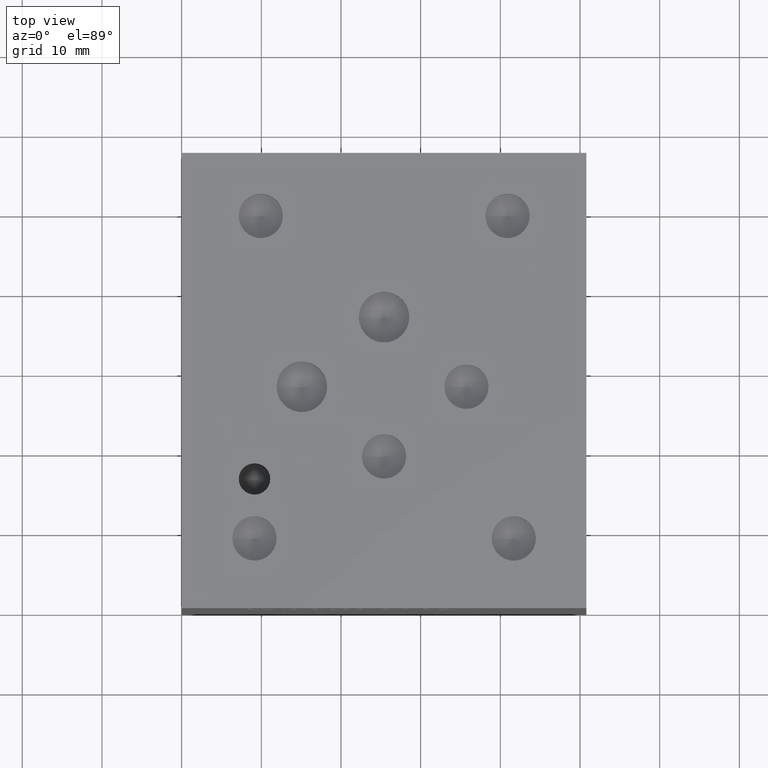
[diagram: clean part render]
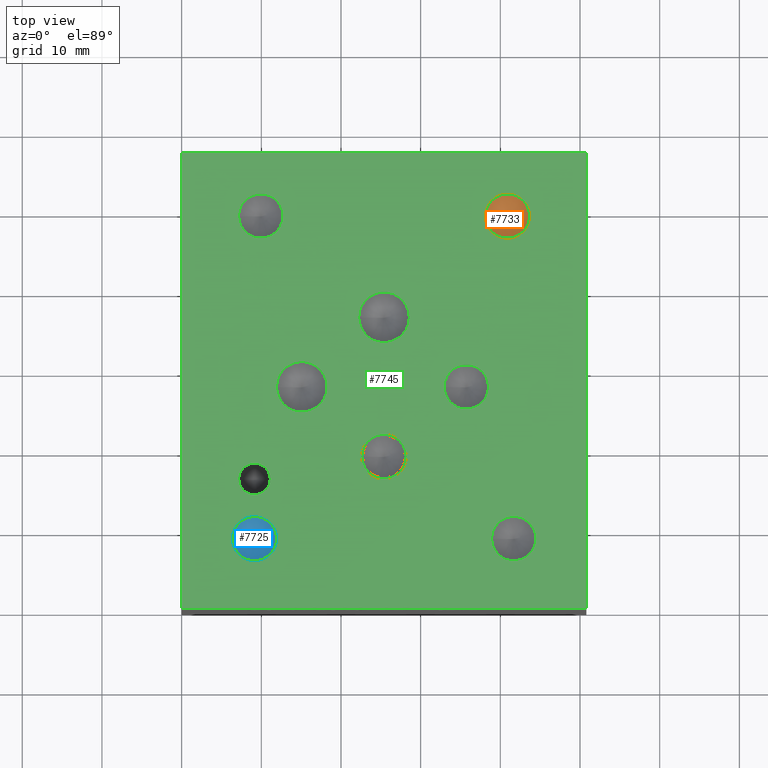
[diagram: same view with three faces highlighted in distinct colors, each labeled with its STEP entity id]
A machine part, top view with three faces highlighted in distinct colors.
Their STEP definitions:

[orange] entity #7733 — the highlighted conical surface has half-angle 60 deg.
#104=CIRCLE('',#8105,2.7813);
#105=CIRCLE('',#8106,2.7813);
#134=CONICAL_SURFACE('',#8104,1.39065,1.0471975511966);
#866=FACE_OUTER_BOUND('',#1290,.T.);
#1290=EDGE_LOOP('',(#6681,#6682,#6683,#6684));
#2082=LINE('',#13069,#2858);
#2858=VECTOR('',#9586,1.39065);
#3576=VERTEX_POINT('',#13065);
#3577=VERTEX_POINT('',#13066);
#3578=VERTEX_POINT('',#13068);
#4628=EDGE_CURVE('',#3576,#3577,#104,.T.);
#4629=EDGE_CURVE('',#3577,#3578,#2082,.T.);
#4630=EDGE_CURVE('',#3577,#3576,#105,.T.);
#6681=ORIENTED_EDGE('',*,*,#4628,.T.);
#6682=ORIENTED_EDGE('',*,*,#4629,.T.);
#6683=ORIENTED_EDGE('',*,*,#4629,.F.);
#6684=ORIENTED_EDGE('',*,*,#4630,.T.);
#7733=ADVANCED_FACE('',(#866),#134,.F.);
#8104=AXIS2_PLACEMENT_3D('',#13064,#9582,#9583);
#8105=AXIS2_PLACEMENT_3D('',#13067,#9584,#9585);
#8106=AXIS2_PLACEMENT_3D('',#13070,#9587,#9588);
#9582=DIRECTION('center_axis',(0.,0.,1.));
#9583=DIRECTION('ref_axis',(1.,0.,0.));
#9584=DIRECTION('center_axis',(0.,0.,1.));
#9585=DIRECTION('ref_axis',(1.,0.,0.));
#9586=DIRECTION('',(0.866025403784439,1.06057523872491E-16,-0.5));
#9587=DIRECTION('center_axis',(0.,0.,1.));
#9588=DIRECTION('ref_axis',(1.,0.,0.));
#13064=CARTESIAN_POINT('Origin',(40.894,49.2125,48.3913278481514));
#13065=CARTESIAN_POINT('',(43.6753,49.2125,49.19422));
#13066=CARTESIAN_POINT('',(38.1127,49.2125,49.19422));
#13067=CARTESIAN_POINT('Origin',(40.894,49.2125,49.19422));
#13068=CARTESIAN_POINT('',(40.894,49.2125,47.5884356963029));
#13069=CARTESIAN_POINT('',(39.50335,49.2125,48.3913278481514));
#13070=CARTESIAN_POINT('Origin',(40.894,49.2125,49.19422));

[blue] entity #7725 — the highlighted conical surface has half-angle 60 deg.
#88=CIRCLE('',#8081,2.7813);
#89=CIRCLE('',#8082,2.7813);
#130=CONICAL_SURFACE('',#8080,1.39065,1.0471975511966);
#858=FACE_OUTER_BOUND('',#1282,.T.);
#1282=EDGE_LOOP('',(#6641,#6642,#6643,#6644));
#2074=LINE('',#13017,#2850);
#2850=VECTOR('',#9530,1.39065);
#3556=VERTEX_POINT('',#13013);
#3557=VERTEX_POINT('',#13014);
#3558=VERTEX_POINT('',#13016);
#4604=EDGE_CURVE('',#3556,#3557,#88,.T.);
#4605=EDGE_CURVE('',#3557,#3558,#2074,.T.);
#4606=EDGE_CURVE('',#3557,#3556,#89,.T.);
#6641=ORIENTED_EDGE('',*,*,#4604,.T.);
#6642=ORIENTED_EDGE('',*,*,#4605,.T.);
#6643=ORIENTED_EDGE('',*,*,#4605,.F.);
#6644=ORIENTED_EDGE('',*,*,#4606,.T.);
#7725=ADVANCED_FACE('',(#858),#130,.F.);
#8080=AXIS2_PLACEMENT_3D('',#13012,#9526,#9527);
#8081=AXIS2_PLACEMENT_3D('',#13015,#9528,#9529);
#8082=AXIS2_PLACEMENT_3D('',#13018,#9531,#9532);
#9526=DIRECTION('center_axis',(0.,0.,1.));
#9527=DIRECTION('ref_axis',(1.,0.,0.));
#9528=DIRECTION('center_axis',(0.,0.,1.));
#9529=DIRECTION('ref_axis',(1.,0.,0.));
#9530=DIRECTION('',(0.866025403784439,1.06057523872491E-16,-0.5));
#9531=DIRECTION('center_axis',(0.,0.,1.));
#9532=DIRECTION('ref_axis',(1.,0.,0.));
#13012=CARTESIAN_POINT('Origin',(9.144,8.7249,48.3913278481514));
#13013=CARTESIAN_POINT('',(11.9253,8.7249,49.19422));
#13014=CARTESIAN_POINT('',(6.3627,8.7249,49.19422));
#13015=CARTESIAN_POINT('Origin',(9.144,8.7249,49.19422));
#13016=CARTESIAN_POINT('',(9.144,8.7249,47.5884356963029));
#13017=CARTESIAN_POINT('',(7.75335,8.7249,48.3913278481514));
#13018=CARTESIAN_POINT('Origin',(9.144,8.7249,49.19422));

[green] entity #7745 — the highlighted planar face has unit normal (0, 0, 1).
#86=CIRCLE('',#8078,2.7813);
#87=CIRCLE('',#8079,2.7813);
#90=CIRCLE('',#8084,2.7813);
#91=CIRCLE('',#8085,2.7813);
#94=CIRCLE('',#8090,2.7813);
#95=CIRCLE('',#8091,2.7813);
#98=CIRCLE('',#8096,2.7813);
#99=CIRCLE('',#8097,2.7813);
#102=CIRCLE('',#8102,2.7813);
#103=CIRCLE('',#8103,2.7813);
#106=CIRCLE('',#8108,2.7813);
#107=CIRCLE('',#8109,2.7813);
#110=CIRCLE('',#8114,3.175);
#111=CIRCLE('',#8115,3.175);
#114=CIRCLE('',#8120,3.175);
#115=CIRCLE('',#8121,3.175);
#118=CIRCLE('',#8126,1.9812);
#119=CIRCLE('',#8127,1.9812);
#473=FACE_BOUND('',#1303,.T.);
#474=FACE_BOUND('',#1304,.T.);
#475=FACE_BOUND('',#1305,.T.);
#476=FACE_BOUND('',#1306,.T.);
#477=FACE_BOUND('',#1307,.T.);
#478=FACE_BOUND('',#1308,.T.);
#479=FACE_BOUND('',#1309,.T.);
#480=FACE_BOUND('',#1310,.T.);
#481=FACE_BOUND('',#1311,.T.);
#878=FACE_OUTER_BOUND('',#1302,.T.);
#1302=EDGE_LOOP('',(#6736,#6737,#6738,#6739));
#1303=EDGE_LOOP('',(#6740,#6741));
#1304=EDGE_LOOP('',(#6742,#6743));
#1305=EDGE_LOOP('',(#6744,#6745));
#1306=EDGE_LOOP('',(#6746,#6747));
#1307=EDGE_LOOP('',(#6748,#6749));
#1308=EDGE_LOOP('',(#6750,#6751));
#1309=EDGE_LOOP('',(#6752,#6753));
#1310=EDGE_LOOP('',(#6754,#6755));
#1311=EDGE_LOOP('',(#6756,#6757));
#1671=LINE('',#11935,#2447);
#2091=LINE('',#13120,#2867);
#2094=LINE('',#13126,#2870);
#2097=LINE('',#13130,#2873);
#2447=VECTOR('',#8679,10.);
#2867=VECTOR('',#9641,10.);
#2870=VECTOR('',#9646,10.);
#2873=VECTOR('',#9651,10.);
#3230=VERTEX_POINT('',#11932);
#3231=VERTEX_POINT('',#11934);
#3554=VERTEX_POINT('',#13007);
#3555=VERTEX_POINT('',#13008);
#3559=VERTEX_POINT('',#13020);
#3560=VERTEX_POINT('',#13021);
#3564=VERTEX_POINT('',#13033);
#3565=VERTEX_POINT('',#13034);
#3569=VERTEX_POINT('',#13046);
#3570=VERTEX_POINT('',#13047);
#3574=VERTEX_POINT('',#13059);
#3575=VERTEX_POINT('',#13060);
#3579=VERTEX_POINT('',#13072);
#3580=VERTEX_POINT('',#13073);
#3584=VERTEX_POINT('',#13085);
#3585=VERTEX_POINT('',#13086);
#3589=VERTEX_POINT('',#13098);
#3590=VERTEX_POINT('',#13099);
#3594=VERTEX_POINT('',#13111);
#3595=VERTEX_POINT('',#13112);
#3597=VERTEX_POINT('',#13119);
#3599=VERTEX_POINT('',#13125);
#4133=EDGE_CURVE('',#3231,#3230,#1671,.T.);
#4601=EDGE_CURVE('',#3554,#3555,#86,.T.);
#4602=EDGE_CURVE('',#3555,#3554,#87,.T.);
#4607=EDGE_CURVE('',#3559,#3560,#90,.T.);
#4608=EDGE_CURVE('',#3560,#3559,#91,.T.);
#4613=EDGE_CURVE('',#3564,#3565,#94,.T.);
#4614=EDGE_CURVE('',#3565,#3564,#95,.T.);
#4619=EDGE_CURVE('',#3569,#3570,#98,.T.);
#4620=EDGE_CURVE('',#3570,#3569,#99,.T.);
#4625=EDGE_CURVE('',#3574,#3575,#102,.T.);
#4626=EDGE_CURVE('',#3575,#3574,#103,.T.);
#4631=EDGE_CURVE('',#3579,#3580,#106,.T.);
#4632=EDGE_CURVE('',#3580,#3579,#107,.T.);
#4637=EDGE_CURVE('',#3584,#3585,#110,.T.);
#4638=EDGE_CURVE('',#3585,#3584,#111,.T.);
#4643=EDGE_CURVE('',#3589,#3590,#114,.T.);
#4644=EDGE_CURVE('',#3590,#3589,#115,.T.);
#4649=EDGE_CURVE('',#3594,#3595,#118,.T.);
#4650=EDGE_CURVE('',#3595,#3594,#119,.T.);
#4653=EDGE_CURVE('',#3597,#3231,#2091,.T.);
#4656=EDGE_CURVE('',#3599,#3597,#2094,.T.);
#4659=EDGE_CURVE('',#3230,#3599,#2097,.T.);
#6736=ORIENTED_EDGE('',*,*,#4133,.T.);
#6737=ORIENTED_EDGE('',*,*,#4659,.T.);
#6738=ORIENTED_EDGE('',*,*,#4656,.T.);
#6739=ORIENTED_EDGE('',*,*,#4653,.T.);
#6740=ORIENTED_EDGE('',*,*,#4601,.T.);
#6741=ORIENTED_EDGE('',*,*,#4602,.T.);
#6742=ORIENTED_EDGE('',*,*,#4607,.T.);
#6743=ORIENTED_EDGE('',*,*,#4608,.T.);
#6744=ORIENTED_EDGE('',*,*,#4613,.T.);
#6745=ORIENTED_EDGE('',*,*,#4614,.T.);
#6746=ORIENTED_EDGE('',*,*,#4619,.T.);
#6747=ORIENTED_EDGE('',*,*,#4620,.T.);
#6748=ORIENTED_EDGE('',*,*,#4625,.T.);
#6749=ORIENTED_EDGE('',*,*,#4626,.T.);
#6750=ORIENTED_EDGE('',*,*,#4631,.T.);
#6751=ORIENTED_EDGE('',*,*,#4632,.T.);
#6752=ORIENTED_EDGE('',*,*,#4637,.T.);
#6753=ORIENTED_EDGE('',*,*,#4638,.T.);
#6754=ORIENTED_EDGE('',*,*,#4643,.T.);
#6755=ORIENTED_EDGE('',*,*,#4644,.T.);
#6756=ORIENTED_EDGE('',*,*,#4649,.T.);
#6757=ORIENTED_EDGE('',*,*,#4650,.T.);
#7027=PLANE('',#8132);
#7745=ADVANCED_FACE('',(#878,#473,#474,#475,#476,#477,#478,#479,#480,#481),
#7027,.T.);
#8078=AXIS2_PLACEMENT_3D('',#13009,#9521,#9522);
#8079=AXIS2_PLACEMENT_3D('',#13010,#9523,#9524);
#8084=AXIS2_PLACEMENT_3D('',#13022,#9535,#9536);
#8085=AXIS2_PLACEMENT_3D('',#13023,#9537,#9538);
#8090=AXIS2_PLACEMENT_3D('',#13035,#9549,#9550);
#8091=AXIS2_PLACEMENT_3D('',#13036,#9551,#9552);
#8096=AXIS2_PLACEMENT_3D('',#13048,#9563,#9564);
#8097=AXIS2_PLACEMENT_3D('',#13049,#9565,#9566);
#8102=AXIS2_PLACEMENT_3D('',#13061,#9577,#9578);
#8103=AXIS2_PLACEMENT_3D('',#13062,#9579,#9580);
#8108=AXIS2_PLACEMENT_3D('',#13074,#9591,#9592);
#8109=AXIS2_PLACEMENT_3D('',#13075,#9593,#9594);
#8114=AXIS2_PLACEMENT_3D('',#13087,#9605,#9606);
#8115=AXIS2_PLACEMENT_3D('',#13088,#9607,#9608);
#8120=AXIS2_PLACEMENT_3D('',#13100,#9619,#9620);
#8121=AXIS2_PLACEMENT_3D('',#13101,#9621,#9622);
#8126=AXIS2_PLACEMENT_3D('',#13113,#9633,#9634);
#8127=AXIS2_PLACEMENT_3D('',#13114,#9635,#9636);
#8132=AXIS2_PLACEMENT_3D('',#13132,#9654,#9655);
#8679=DIRECTION('',(1.,0.,0.));
#9521=DIRECTION('center_axis',(0.,0.,-1.));
#9522=DIRECTION('ref_axis',(1.,0.,0.));
#9523=DIRECTION('center_axis',(0.,0.,-1.));
#9524=DIRECTION('ref_axis',(1.,0.,0.));
#9535=DIRECTION('center_axis',(0.,0.,-1.));
#9536=DIRECTION('ref_axis',(1.,0.,0.));
#9537=DIRECTION('center_axis',(0.,0.,-1.));
#9538=DIRECTION('ref_axis',(1.,0.,0.));
#9549=DIRECTION('center_axis',(0.,0.,-1.));
#9550=DIRECTION('ref_axis',(1.,0.,0.));
#9551=DIRECTION('center_axis',(0.,0.,-1.));
#9552=DIRECTION('ref_axis',(1.,0.,0.));
#9563=DIRECTION('center_axis',(0.,0.,-1.));
#9564=DIRECTION('ref_axis',(1.,0.,0.));
#9565=DIRECTION('center_axis',(0.,0.,-1.));
#9566=DIRECTION('ref_axis',(1.,0.,0.));
#9577=DIRECTION('center_axis',(0.,0.,-1.));
#9578=DIRECTION('ref_axis',(1.,0.,0.));
#9579=DIRECTION('center_axis',(0.,0.,-1.));
#9580=DIRECTION('ref_axis',(1.,0.,0.));
#9591=DIRECTION('center_axis',(0.,0.,-1.));
#9592=DIRECTION('ref_axis',(1.,0.,0.));
#9593=DIRECTION('center_axis',(0.,0.,-1.));
#9594=DIRECTION('ref_axis',(1.,0.,0.));
#9605=DIRECTION('center_axis',(0.,0.,-1.));
#9606=DIRECTION('ref_axis',(1.,0.,0.));
#9607=DIRECTION('center_axis',(0.,0.,-1.));
#9608=DIRECTION('ref_axis',(1.,0.,0.));
#9619=DIRECTION('center_axis',(0.,0.,-1.));
#9620=DIRECTION('ref_axis',(1.,0.,0.));
#9621=DIRECTION('center_axis',(0.,0.,-1.));
#9622=DIRECTION('ref_axis',(1.,0.,0.));
#9633=DIRECTION('center_axis',(0.,0.,-1.));
#9634=DIRECTION('ref_axis',(1.,0.,0.));
#9635=DIRECTION('center_axis',(0.,0.,-1.));
#9636=DIRECTION('ref_axis',(1.,0.,0.));
#9641=DIRECTION('',(0.,-1.,0.));
#9646=DIRECTION('',(-1.,0.,0.));
#9651=DIRECTION('',(0.,1.,0.));
#9654=DIRECTION('center_axis',(0.,0.,1.));
#9655=DIRECTION('ref_axis',(1.,0.,0.));
#11932=CARTESIAN_POINT('',(50.8,0.,50.8));
#11934=CARTESIAN_POINT('',(0.,0.,50.8));
#11935=CARTESIAN_POINT('',(0.,0.,50.8));
#13007=CARTESIAN_POINT('',(12.7127,49.2125,50.8));
#13008=CARTESIAN_POINT('',(7.1501,49.2125,50.8));
#13009=CARTESIAN_POINT('Origin',(9.9314,49.2125,50.8));
#13010=CARTESIAN_POINT('Origin',(9.9314,49.2125,50.8));
#13020=CARTESIAN_POINT('',(11.9253,8.7249,50.8));
#13021=CARTESIAN_POINT('',(6.3627,8.7249,50.8));
#13022=CARTESIAN_POINT('Origin',(9.144,8.7249,50.8));
#13023=CARTESIAN_POINT('Origin',(9.144,8.7249,50.8));
#13033=CARTESIAN_POINT('',(38.5191,27.7622,50.8));
#13034=CARTESIAN_POINT('',(32.9565,27.7622,50.8));
#13035=CARTESIAN_POINT('Origin',(35.7378,27.7622,50.8));
#13036=CARTESIAN_POINT('Origin',(35.7378,27.7622,50.8));
#13046=CARTESIAN_POINT('',(28.1813,19.0246,50.8));
#13047=CARTESIAN_POINT('',(22.6187,19.0246,50.8));
#13048=CARTESIAN_POINT('Origin',(25.4,19.0246,50.8));
#13049=CARTESIAN_POINT('Origin',(25.4,19.0246,50.8));
#13059=CARTESIAN_POINT('',(44.4627,8.71855,50.8));
#13060=CARTESIAN_POINT('',(38.9001,8.71855,50.8));
#13061=CARTESIAN_POINT('Origin',(41.6814,8.71855,50.8));
#13062=CARTESIAN_POINT('Origin',(41.6814,8.71855,50.8));
#13072=CARTESIAN_POINT('',(43.6753,49.2125,50.8));
#13073=CARTESIAN_POINT('',(38.1127,49.2125,50.8));
#13074=CARTESIAN_POINT('Origin',(40.894,49.2125,50.8));
#13075=CARTESIAN_POINT('Origin',(40.894,49.2125,50.8));
#13085=CARTESIAN_POINT('',(18.2626,27.7622,50.8));
#13086=CARTESIAN_POINT('',(11.9126,27.7622,50.8));
#13087=CARTESIAN_POINT('Origin',(15.0876,27.7622,50.8));
#13088=CARTESIAN_POINT('Origin',(15.0876,27.7622,50.8));
#13098=CARTESIAN_POINT('',(28.575,36.4998,50.8));
#13099=CARTESIAN_POINT('',(22.225,36.4998,50.8));
#13100=CARTESIAN_POINT('Origin',(25.4,36.4998,50.8));
#13101=CARTESIAN_POINT('Origin',(25.4,36.4998,50.8));
#13111=CARTESIAN_POINT('',(11.1252,16.2052,50.8));
#13112=CARTESIAN_POINT('',(7.1628,16.2052,50.8));
#13113=CARTESIAN_POINT('Origin',(9.144,16.2052,50.8));
#13114=CARTESIAN_POINT('Origin',(9.144,16.2052,50.8));
#13119=CARTESIAN_POINT('',(0.,57.1373,50.8));
#13120=CARTESIAN_POINT('',(0.,57.1373,50.8));
#13125=CARTESIAN_POINT('',(50.8,57.1373,50.8));
#13126=CARTESIAN_POINT('',(50.8,57.1373,50.8));
#13130=CARTESIAN_POINT('',(50.8,0.,50.8));
#13132=CARTESIAN_POINT('Origin',(25.4,28.56865,50.8));